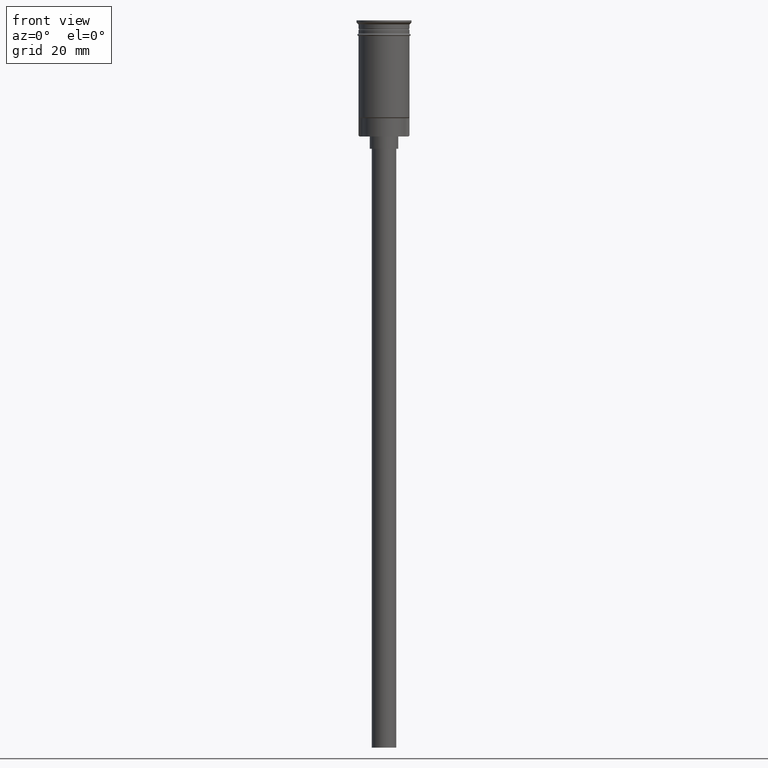
[diagram: clean part render]
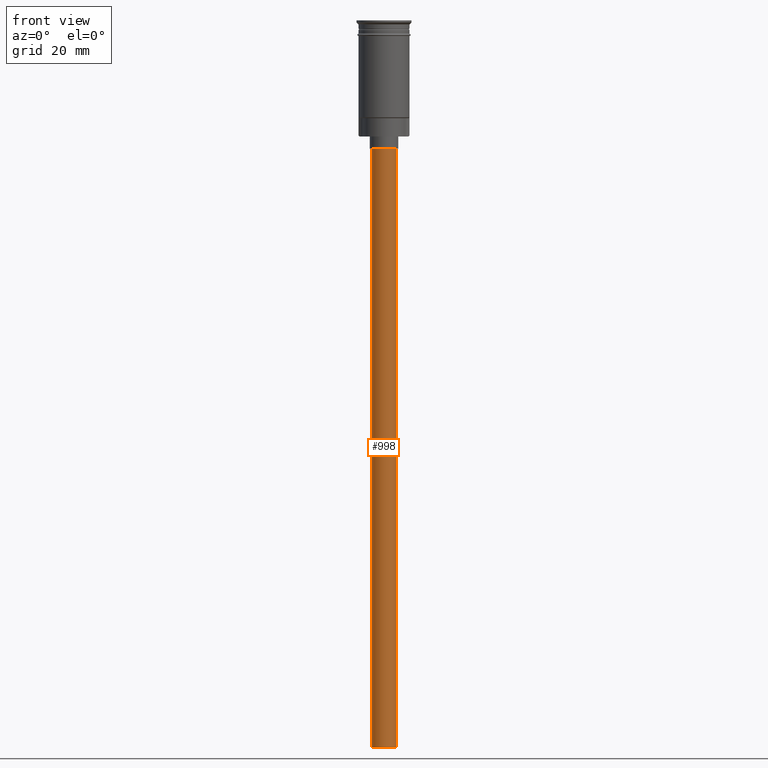
[diagram: same view with one face highlighted and labeled with its STEP entity id]
A machine part, front view. The second image highlights one B-rep face of the part: STEP entity #998.
In plain terms, the highlighted cylindrical surface (edge-blend (fillet) strip) has radius 3 mm, axis along (-0, -0, 1).
Its self-contained STEP definition (entity closure, byte-faithful):
#72 = AXIS2_PLACEMENT_3D ( 'NONE', #427, #1408, #187 ) ;
#168 = FACE_OUTER_BOUND ( 'NONE', #852, .T. ) ;
#187 = DIRECTION ( 'NONE',  ( 1.000000000000000000, 0.000000000000000000, 0.000000000000000000 ) ) ;
#207 = DIRECTION ( 'NONE',  ( -0.000000000000000000, -0.000000000000000000, 1.000000000000000000 ) ) ;
#326 = VECTOR ( 'NONE', #207, 1000.000000000000000 ) ;
#366 = CARTESIAN_POINT ( 'NONE',  ( -3.000000000000000444, 3.673940397442060361E-16, -31.50000000000000000 ) ) ;
#387 = CARTESIAN_POINT ( 'NONE',  ( 0.000000000000000000, 0.000000000000000000, -31.50000000000000000 ) ) ;
#427 = CARTESIAN_POINT ( 'NONE',  ( 0.000000000000000000, 0.000000000000000000, -178.5000000000000000 ) ) ;
#483 = CARTESIAN_POINT ( 'NONE',  ( 3.000000000000000444, 0.000000000000000000, -31.50000000000000000 ) ) ;
#487 = CARTESIAN_POINT ( 'NONE',  ( -3.000000000000000444, 3.673940397442060361E-16, -178.5000000000000000 ) ) ;
#518 = DIRECTION ( 'NONE',  ( 0.000000000000000000, 0.000000000000000000, -1.000000000000000000 ) ) ;
#620 = DIRECTION ( 'NONE',  ( -1.000000000000000000, 0.000000000000000000, 0.000000000000000000 ) ) ;
#669 = VERTEX_POINT ( 'NONE', #483 ) ;
#711 = EDGE_CURVE ( 'NONE', #1117, #1174, #1191, .T. ) ;
#712 = CIRCLE ( 'NONE', #949, 3.000000000000000444 ) ;
#822 = CIRCLE ( 'NONE', #869, 3.000000000000000444 ) ;
#852 = EDGE_LOOP ( 'NONE', ( #1427, #857, #1100, #1043 ) ) ;
#857 = ORIENTED_EDGE ( 'NONE', *, *, #1074, .F. ) ;
#869 = AXIS2_PLACEMENT_3D ( 'NONE', #387, #1251, #1377 ) ;
#949 = AXIS2_PLACEMENT_3D ( 'NONE', #1592, #518, #620 ) ;
#954 = EDGE_CURVE ( 'NONE', #981, #669, #1051, .T. ) ;
#981 = VERTEX_POINT ( 'NONE', #1265 ) ;
#998 = ADVANCED_FACE ( 'NONE', ( #168 ), #1015, .T. ) ;
#1015 = CYLINDRICAL_SURFACE ( 'NONE', #72, 3.000000000000000444 ) ;
#1043 = ORIENTED_EDGE ( 'NONE', *, *, #1237, .T. ) ;
#1051 = LINE ( 'NONE', #1153, #1129 ) ;
#1074 = EDGE_CURVE ( 'NONE', #981, #1117, #712, .T. ) ;
#1100 = ORIENTED_EDGE ( 'NONE', *, *, #954, .T. ) ;
#1117 = VERTEX_POINT ( 'NONE', #487 ) ;
#1129 = VECTOR ( 'NONE', #1549, 1000.000000000000000 ) ;
#1153 = CARTESIAN_POINT ( 'NONE',  ( 3.000000000000000444, 0.000000000000000000, -178.5000000000000000 ) ) ;
#1174 = VERTEX_POINT ( 'NONE', #366 ) ;
#1191 = LINE ( 'NONE', #1197, #326 ) ;
#1197 = CARTESIAN_POINT ( 'NONE',  ( -3.000000000000000444, 3.673940397442060361E-16, -178.5000000000000000 ) ) ;
#1237 = EDGE_CURVE ( 'NONE', #669, #1174, #822, .T. ) ;
#1251 = DIRECTION ( 'NONE',  ( 0.000000000000000000, 0.000000000000000000, -1.000000000000000000 ) ) ;
#1265 = CARTESIAN_POINT ( 'NONE',  ( 3.000000000000000444, 0.000000000000000000, -178.5000000000000000 ) ) ;
#1377 = DIRECTION ( 'NONE',  ( -1.000000000000000000, 0.000000000000000000, 0.000000000000000000 ) ) ;
#1408 = DIRECTION ( 'NONE',  ( -0.000000000000000000, -0.000000000000000000, 1.000000000000000000 ) ) ;
#1427 = ORIENTED_EDGE ( 'NONE', *, *, #711, .F. ) ;
#1549 = DIRECTION ( 'NONE',  ( -0.000000000000000000, -0.000000000000000000, 1.000000000000000000 ) ) ;
#1592 = CARTESIAN_POINT ( 'NONE',  ( 0.000000000000000000, 0.000000000000000000, -178.5000000000000000 ) ) ;